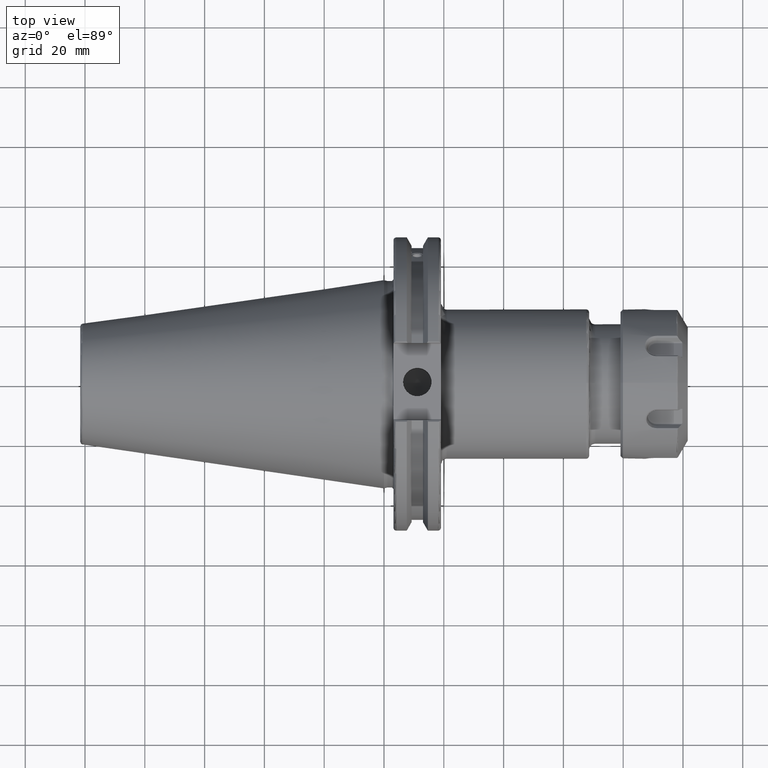
[diagram: clean part render]
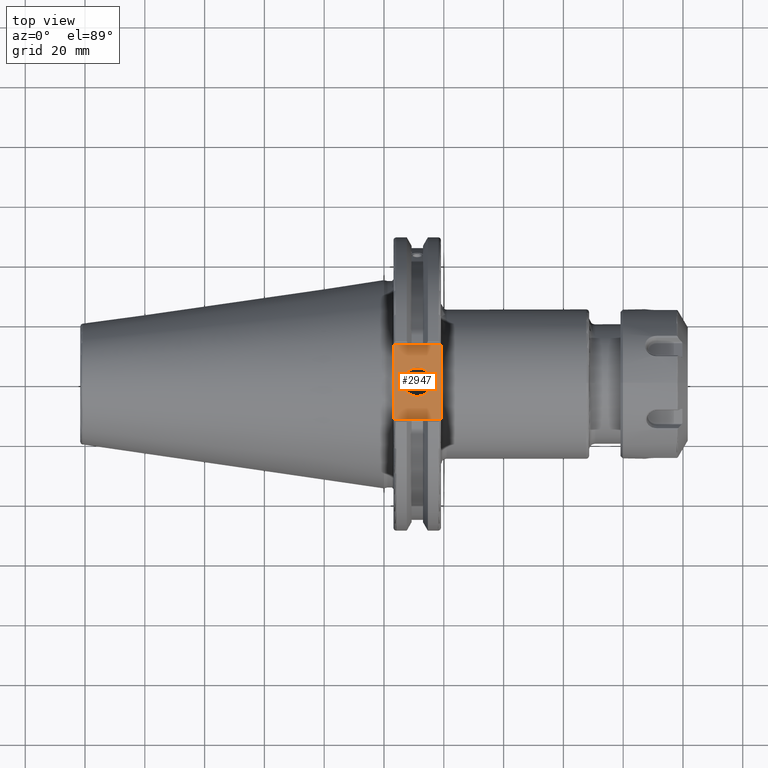
[diagram: same view with one face highlighted and labeled with its STEP entity id]
A machine part, top view. The second image highlights one B-rep face of the part: STEP entity #2947.
In plain terms, the highlighted planar face has unit normal (0, 0, 1).
Its self-contained STEP definition (entity closure, byte-faithful):
#325=FACE_BOUND('',#675,.T.);
#368=PLANE('',#3271);
#486=FACE_OUTER_BOUND('',#674,.T.);
#674=EDGE_LOOP('',(#2407,#2408,#2409,#2410));
#675=EDGE_LOOP('',(#2411));
#778=LINE('',#4351,#953);
#817=LINE('',#4849,#992);
#848=LINE('',#5084,#1023);
#850=LINE('',#5087,#1025);
#953=VECTOR('',#3496,10.);
#992=VECTOR('',#3665,10.);
#1023=VECTOR('',#3762,10.);
#1025=VECTOR('',#3766,10.);
#1191=CIRCLE('',#3256,4.7625);
#1284=VERTEX_POINT('',#4348);
#1285=VERTEX_POINT('',#4350);
#1360=VERTEX_POINT('',#4846);
#1361=VERTEX_POINT('',#4848);
#1407=VERTEX_POINT('',#5117);
#1574=EDGE_CURVE('',#1284,#1285,#778,.T.);
#1673=EDGE_CURVE('',#1360,#1361,#817,.T.);
#1739=EDGE_CURVE('',#1285,#1360,#848,.T.);
#1741=EDGE_CURVE('',#1361,#1284,#850,.T.);
#1753=EDGE_CURVE('',#1407,#1407,#1191,.T.);
#2407=ORIENTED_EDGE('',*,*,#1739,.F.);
#2408=ORIENTED_EDGE('',*,*,#1574,.F.);
#2409=ORIENTED_EDGE('',*,*,#1741,.F.);
#2410=ORIENTED_EDGE('',*,*,#1673,.F.);
#2411=ORIENTED_EDGE('',*,*,#1753,.T.);
#2947=ADVANCED_FACE('',(#486,#325),#368,.T.);
#3256=AXIS2_PLACEMENT_3D('',#5118,#3798,#3799);
#3271=AXIS2_PLACEMENT_3D('',#5134,#3829,#3830);
#3496=DIRECTION('',(0.,-1.,0.));
#3665=DIRECTION('',(0.,1.,0.));
#3762=DIRECTION('',(-1.,1.31581988103722E-16,0.));
#3766=DIRECTION('',(1.,0.,0.));
#3798=DIRECTION('center_axis',(0.,0.,-1.));
#3799=DIRECTION('ref_axis',(1.,0.,0.));
#3829=DIRECTION('center_axis',(0.,0.,1.));
#3830=DIRECTION('ref_axis',(1.,0.,0.));
#4348=CARTESIAN_POINT('',(19.05,12.45,37.719));
#4350=CARTESIAN_POINT('',(19.05,-12.45,37.719));
#4351=CARTESIAN_POINT('',(19.05,0.,37.719));
#4846=CARTESIAN_POINT('',(3.175,-12.45,37.719));
#4848=CARTESIAN_POINT('',(3.175,12.45,37.719));
#4849=CARTESIAN_POINT('',(3.175,24.60625,37.719));
#5084=CARTESIAN_POINT('',(10.63125,-12.45,37.719));
#5087=CARTESIAN_POINT('',(19.06875,12.45,37.719));
#5117=CARTESIAN_POINT('',(6.3716,-5.83238038093927E-16,37.719));
#5118=CARTESIAN_POINT('Origin',(11.1341,0.,37.719));
#5134=CARTESIAN_POINT('Origin',(18.0875,0.,37.719));